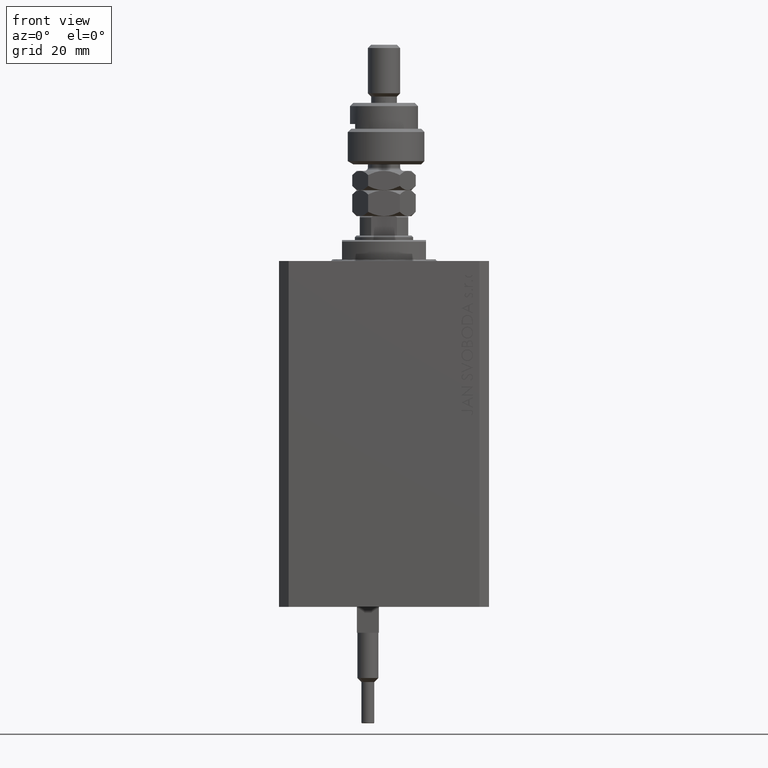
[diagram: clean part render]
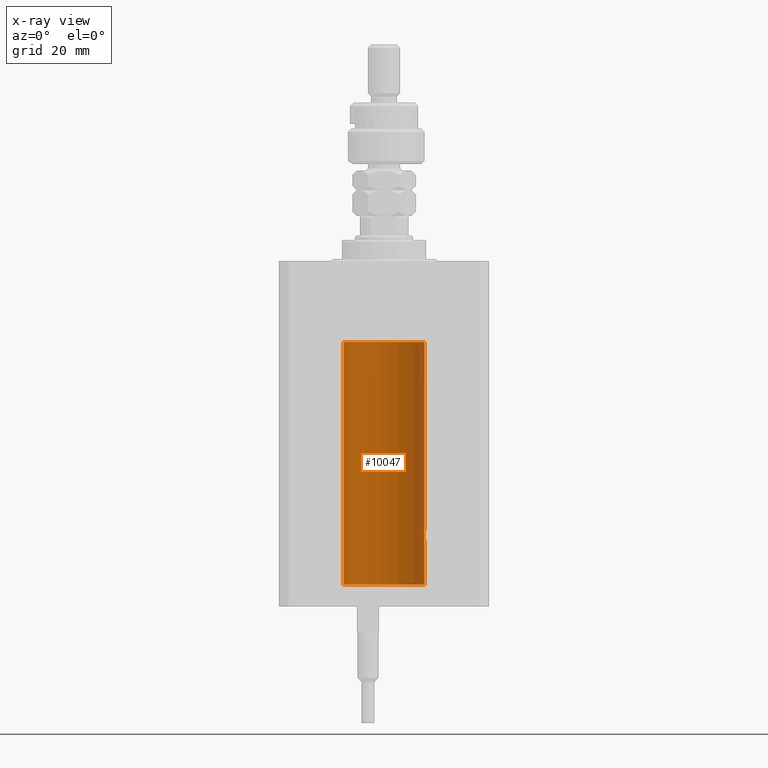
[diagram: x-ray — body ghosted, one internal face saturated and labeled with its STEP entity id]
A machine part, front view, then the same camera in x-ray: the body is ghosted and one INTERNAL B-rep face — a face not visible from any outside direction — is saturated and labeled: STEP entity #10047.
In plain terms, the highlighted cylindrical surface (partial cylindrical patch) has radius 12.5 mm, axis along (0, 0, 1).
Its self-contained STEP definition (entity closure, byte-faithful):
#75 = AXIS2_PLACEMENT_3D ( 'NONE', #25085, #17367, #5077 ) ;
#103 = VERTEX_POINT ( 'NONE', #3410 ) ;
#596 = CARTESIAN_POINT ( 'NONE',  ( 12.35520276972935427, 1.897773362058238877, -84.35528278634336630 ) ) ;
#1104 = CARTESIAN_POINT ( 'NONE',  ( 12.39867611624532806, 1.590019252152828910, -83.77984495929609920 ) ) ;
#1652 = ORIENTED_EDGE ( 'NONE', *, *, #43519, .F. ) ;
#2092 = EDGE_CURVE ( 'NONE', #27520, #26716, #12163, .T. ) ;
#2326 = ORIENTED_EDGE ( 'NONE', *, *, #39826, .T. ) ;
#3410 = CARTESIAN_POINT ( 'NONE',  ( -12.50000000000000000, 1.530808498934191521E-15, -25.10000000000000142 ) ) ;
#4438 = CARTESIAN_POINT ( 'NONE',  ( 12.34924836377099844, 1.935649219704934865, -84.48002062127160627 ) ) ;
#5077 = DIRECTION ( 'NONE',  ( 1.000000000000000000, 0.000000000000000000, 0.000000000000000000 ) ) ;
#5389 = CARTESIAN_POINT ( 'NONE',  ( 12.50000000000000000, 0.000000000000000000, -100.0999999999999943 ) ) ;
#7102 = B_SPLINE_CURVE_WITH_KNOTS ( 'NONE', 3,
 ( #8062, #9073, #39657, #4438, #596, #40173, #12924, #1104, #16247, #20615, #20361, #36308, #16504, #47622, #16753, #12415, #47104, #28591 ),
 .UNSPECIFIED., .F., .F.,
 ( 4, 2, 2, 2, 2, 2, 2, 2, 4 ),
 ( 0.003132244164174466730, 0.003523586189974241625, 0.003914928215774016521, 0.004306270241573791416, 0.004697612267373566311, 0.005088954293173341206, 0.005480296318973116101, 0.005871638344772890997, 0.006262980370572665892 ),
 .UNSPECIFIED. ) ;
#7577 = CARTESIAN_POINT ( 'NONE',  ( 12.33896267925302759, 2.000000000000247802, -84.99999999999998579 ) ) ;
#8062 = CARTESIAN_POINT ( 'NONE',  ( 12.33896267925302759, 2.000000000000247802, -84.99999999999998579 ) ) ;
#8301 = EDGE_CURVE ( 'NONE', #34853, #19216, #37913, .T. ) ;
#8331 = CARTESIAN_POINT ( 'NONE',  ( 12.50000000000000000, 2.320363022323678888E-15, -87.00000000000000000 ) ) ;
#8575 = CARTESIAN_POINT ( 'NONE',  ( 12.49789833780794446, 0.2625555164371021766, -86.98698170822147802 ) ) ;
#9073 = CARTESIAN_POINT ( 'NONE',  ( 12.33896267925302581, 2.000000000000247358, -84.86934705949914814 ) ) ;
#10047 = ADVANCED_FACE ( 'NONE', ( #24571 ), #28700, .F. ) ;
#10702 = LINE ( 'NONE', #50253, #14102 ) ;
#10795 = EDGE_CURVE ( 'NONE', #17647, #21206, #21038, .T. ) ;
#12163 = B_SPLINE_CURVE_WITH_KNOTS ( 'NONE', 3,
 ( #8331, #19351, #8575, #27331, #23976, #16266, #39178, #43026, #35043, #12434, #39933, #31196, #27076, #7577 ),
 .UNSPECIFIED., .F., .F.,
 ( 4, 2, 2, 2, 2, 2, 4 ),
 ( 2.254408494944823136E-18, 0.0003915305205218102386, 0.0007830610410436180920, 0.001174591561565426108, 0.001566122082087234016, 0.002349183123130850048, 0.003132244164174466730 ),
 .UNSPECIFIED. ) ;
#12415 = CARTESIAN_POINT ( 'NONE',  ( 12.49788668346399945, 0.2632864803365707607, -83.01308975838333026 ) ) ;
#12434 = CARTESIAN_POINT ( 'NONE',  ( 12.39869754437268590, 1.598954131913722820, -86.22932152813008599 ) ) ;
#12654 = DIRECTION ( 'NONE',  ( 0.000000000000000000, 0.000000000000000000, 1.000000000000000000 ) ) ;
#12924 = CARTESIAN_POINT ( 'NONE',  ( 12.37925647381943506, 1.734744884174218571, -83.99620732598648942 ) ) ;
#12985 = CARTESIAN_POINT ( 'NONE',  ( 12.33896267925302759, 2.000000000000247802, -84.99999999999998579 ) ) ;
#14102 = VECTOR ( 'NONE', #21989, 1000.000000000000000 ) ;
#15736 = AXIS2_PLACEMENT_3D ( 'NONE', #47869, #12654, #42750 ) ;
#16247 = CARTESIAN_POINT ( 'NONE',  ( 12.40916530024876430, 1.507117913375715990, -83.67865955049002480 ) ) ;
#16266 = CARTESIAN_POINT ( 'NONE',  ( 12.46901623405144122, 0.8878913781257877780, -86.79689651717548315 ) ) ;
#16504 = CARTESIAN_POINT ( 'NONE',  ( 12.46910683544638232, 0.8866026273585037032, -83.20247863689694157 ) ) ;
#16753 = CARTESIAN_POINT ( 'NONE',  ( 12.48983962833819028, 0.5199974825204898288, -83.06435160808017315 ) ) ;
#17367 = DIRECTION ( 'NONE',  ( -0.000000000000000000, -0.000000000000000000, 1.000000000000000000 ) ) ;
#17468 = EDGE_CURVE ( 'NONE', #34853, #27520, #10702, .T. ) ;
#17647 = VERTEX_POINT ( 'NONE', #39216 ) ;
#19216 = VERTEX_POINT ( 'NONE', #40471 ) ;
#19351 = CARTESIAN_POINT ( 'NONE',  ( 12.50000000000000178, 0.1324055009716466613, -87.00000000000002842 ) ) ;
#20361 = CARTESIAN_POINT ( 'NONE',  ( 12.44079117518645639, 1.220047488436368122, -83.40989676335082947 ) ) ;
#20615 = CARTESIAN_POINT ( 'NONE',  ( 12.43037348241797524, 1.320834183883837554, -83.49243837704291593 ) ) ;
#21038 = LINE ( 'NONE', #5389, #22226 ) ;
#21074 = ORIENTED_EDGE ( 'NONE', *, *, #2092, .T. ) ;
#21206 = VERTEX_POINT ( 'NONE', #35811 ) ;
#21733 = CARTESIAN_POINT ( 'NONE',  ( -12.50000000000000000, 1.530808498934191521E-15, -100.0999999999999943 ) ) ;
#21989 = DIRECTION ( 'NONE',  ( -0.000000000000000000, -0.000000000000000000, 1.000000000000000000 ) ) ;
#22226 = VECTOR ( 'NONE', #33373, 1000.000000000000000 ) ;
#22988 = VECTOR ( 'NONE', #44656, 1000.000000000000000 ) ;
#23976 = CARTESIAN_POINT ( 'NONE',  ( 12.48390005916863110, 0.6457215011736527899, -86.89742771554266199 ) ) ;
#24072 = AXIS2_PLACEMENT_3D ( 'NONE', #40271, #36403, #44375 ) ;
#24571 = FACE_OUTER_BOUND ( 'NONE', #31771, .T. ) ;
#24927 = CIRCLE ( 'NONE', #24072, 12.50000000000000000 ) ;
#25085 = CARTESIAN_POINT ( 'NONE',  ( 0.000000000000000000, 0.000000000000000000, -100.0999999999999943 ) ) ;
#26716 = VERTEX_POINT ( 'NONE', #12985 ) ;
#27076 = CARTESIAN_POINT ( 'NONE',  ( 12.33896267925302759, 2.000000000000248246, -85.26143174220784715 ) ) ;
#27331 = CARTESIAN_POINT ( 'NONE',  ( 12.48989642018887736, 0.5185418732824252919, -86.93601292187604201 ) ) ;
#27520 = VERTEX_POINT ( 'NONE', #29168 ) ;
#28591 = CARTESIAN_POINT ( 'NONE',  ( 12.50000000000000000, -7.266276684081261841E-23, -82.99999999999998579 ) ) ;
#28700 = CYLINDRICAL_SURFACE ( 'NONE', #75, 12.50000000000000000 ) ;
#28966 = LINE ( 'NONE', #21733, #22988 ) ;
#28989 = ORIENTED_EDGE ( 'NONE', *, *, #10795, .T. ) ;
#29168 = CARTESIAN_POINT ( 'NONE',  ( 12.50000000000000000, 2.320363022323678888E-15, -87.00000000000000000 ) ) ;
#31196 = CARTESIAN_POINT ( 'NONE',  ( 12.34779119491631683, 1.947363444907009633, -85.52502775168252924 ) ) ;
#31771 = EDGE_LOOP ( 'NONE', ( #1652, #48890, #37454, #21074, #2326, #28989, #44482 ) ) ;
#33097 = CARTESIAN_POINT ( 'NONE',  ( 12.50000000000000000, 0.000000000000000000, -100.0999999999999943 ) ) ;
#33373 = DIRECTION ( 'NONE',  ( -0.000000000000000000, -0.000000000000000000, 1.000000000000000000 ) ) ;
#34853 = VERTEX_POINT ( 'NONE', #33097 ) ;
#35043 = CARTESIAN_POINT ( 'NONE',  ( 12.43016561391612917, 1.322713721413880661, -86.50578877836700542 ) ) ;
#35811 = CARTESIAN_POINT ( 'NONE',  ( 12.50000000000000000, 0.000000000000000000, -25.10000000000000142 ) ) ;
#36308 = CARTESIAN_POINT ( 'NONE',  ( 12.46011632531798874, 1.003644408234883434, -83.26516799687671266 ) ) ;
#36403 = DIRECTION ( 'NONE',  ( 0.000000000000000000, 0.000000000000000000, 1.000000000000000000 ) ) ;
#37454 = ORIENTED_EDGE ( 'NONE', *, *, #17468, .T. ) ;
#37913 = CIRCLE ( 'NONE', #15736, 12.50000000000000000 ) ;
#39178 = CARTESIAN_POINT ( 'NONE',  ( 12.46019522898365217, 1.002712894177336223, -86.73540896027598990 ) ) ;
#39216 = CARTESIAN_POINT ( 'NONE',  ( 12.50000000000000000, -7.266276684081261841E-23, -82.99999999999998579 ) ) ;
#39657 = CARTESIAN_POINT ( 'NONE',  ( 12.34110728646152388, 1.986893050944454453, -84.73661347764983987 ) ) ;
#39826 = EDGE_CURVE ( 'NONE', #26716, #17647, #7102, .T. ) ;
#39933 = CARTESIAN_POINT ( 'NONE',  ( 12.37760587642916477, 1.747868572747719229, -86.00639653169000098 ) ) ;
#40173 = CARTESIAN_POINT ( 'NONE',  ( 12.37021546997940291, 1.797317011867403114, -84.11295119741077997 ) ) ;
#40271 = CARTESIAN_POINT ( 'NONE',  ( 0.000000000000000000, 0.000000000000000000, -25.10000000000000142 ) ) ;
#40471 = CARTESIAN_POINT ( 'NONE',  ( -12.50000000000000000, 1.530808498934191521E-15, -100.0999999999999943 ) ) ;
#42750 = DIRECTION ( 'NONE',  ( 1.000000000000000000, 0.000000000000000000, 0.000000000000000000 ) ) ;
#43026 = CARTESIAN_POINT ( 'NONE',  ( 12.44079900692650931, 1.220007525301739282, -86.59017579083662497 ) ) ;
#43519 = EDGE_CURVE ( 'NONE', #19216, #103, #28966, .T. ) ;
#44375 = DIRECTION ( 'NONE',  ( 1.000000000000000000, 0.000000000000000000, 0.000000000000000000 ) ) ;
#44482 = ORIENTED_EDGE ( 'NONE', *, *, #50238, .T. ) ;
#44656 = DIRECTION ( 'NONE',  ( -0.000000000000000000, -0.000000000000000000, 1.000000000000000000 ) ) ;
#47104 = CARTESIAN_POINT ( 'NONE',  ( 12.49999999999999822, 0.1306079576516667173, -82.99999999999997158 ) ) ;
#47622 = CARTESIAN_POINT ( 'NONE',  ( 12.48395395845270528, 0.6446573166014707423, -83.10222124213517247 ) ) ;
#47869 = CARTESIAN_POINT ( 'NONE',  ( 0.000000000000000000, 0.000000000000000000, -100.0999999999999943 ) ) ;
#48890 = ORIENTED_EDGE ( 'NONE', *, *, #8301, .F. ) ;
#50238 = EDGE_CURVE ( 'NONE', #21206, #103, #24927, .T. ) ;
#50253 = CARTESIAN_POINT ( 'NONE',  ( 12.50000000000000000, 0.000000000000000000, -100.0999999999999943 ) ) ;